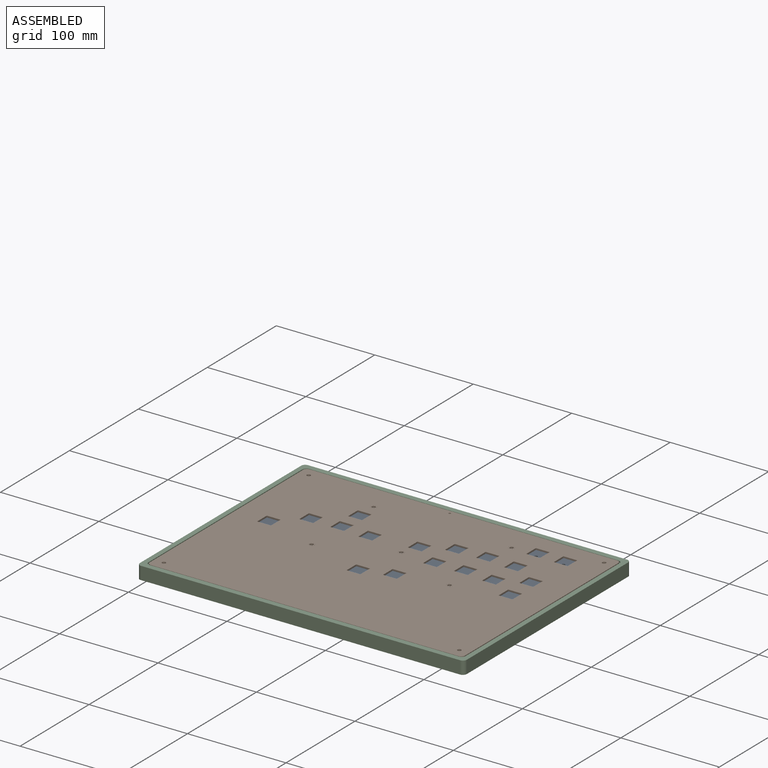
[diagram: assembled view]
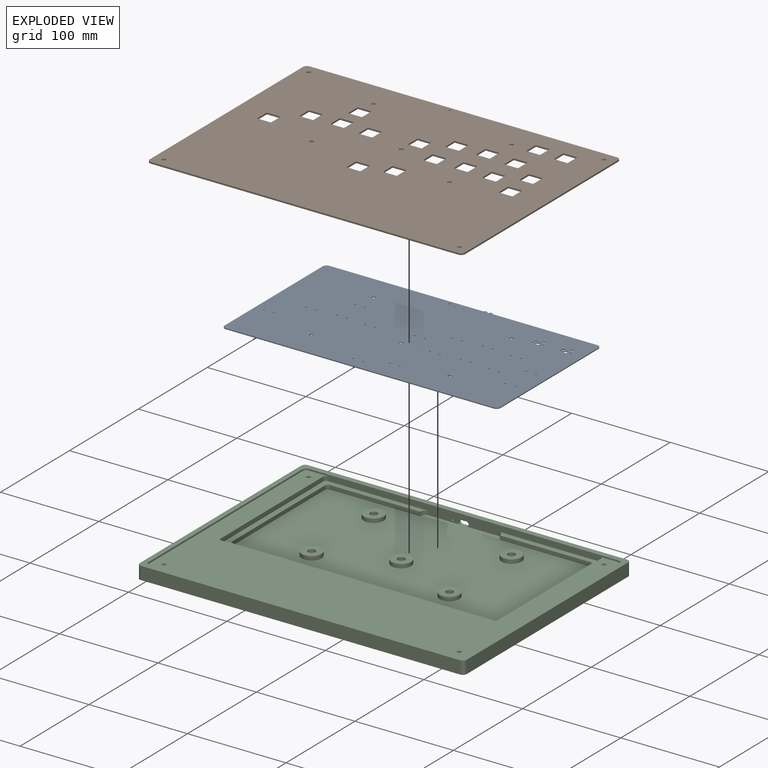
[diagram: exploded view]
GUIDED TOUR — FREECAD ASSEMBLY "UdongCase.rev2.1"

This assembly has 3 components, labeled P0..P2 below (a component is one placed body or linked part; the same part can appear more than once), held together by 0 modeled joints plus 3 derived contact edges. A joint is a constraint between two components; its type names the relative motion it leaves free:
  CONTACT — a derived adjacency edge — the two components touch in the source model (clearance under 2% of the assembly's diagonal); it is measured from the geometry, not a modeled constraint.
Axis/direction vectors are unit vectors and 'through' points are millimeter coordinates, both in the assembly's world frame.

MATES
  1. CONTACT "contact_0_1": P0 <-> P1, contact direction (0.000, 0.000, 1.000) through (-11.31, -5.00, 9.75) mm (derived from contact, not a modeled constraint)
  2. CONTACT "contact_0_2": P0 <-> P2, contact direction (0.000, 0.000, -1.000) through (-4.35, 0.53, 6.59) mm (derived from contact, not a modeled constraint)
  3. CONTACT "contact_1_2": P1 <-> P2, contact direction (0.000, 0.000, -1.000) through (148.07, -220.00, 11.50) mm (derived from contact, not a modeled constraint)

ASSEMBLY ORDER
  1. P2 — the base component [order verified]
  2. P0 [order verified]
  3. P1 [order verified]
Order-tag legend:
  [order verified] — this step's position reverses a verified removal order: the component was checked to insert without passing through the ones already placed.

Of the 3 components, 1 carries a construction recipe — the FreeCAD feature program (sketches with constraints, then the solid features that consume them) that regenerates the part from scratch, quoted from this document or from the linked companion document it references; the rest are supplied as boundary geometry only. The tour below walks the components in assembly order: each is shown spotlighted twice — in the assembled view, then in the exploded view, where a leader line traces a displaced component back to its assembled socket (components that stay in place when exploded have no leader line; saturated green if recipe-attached, orange if geometry-only; every other component desaturated gray) — followed by its recipe or geometry summary and the mates that hold it.
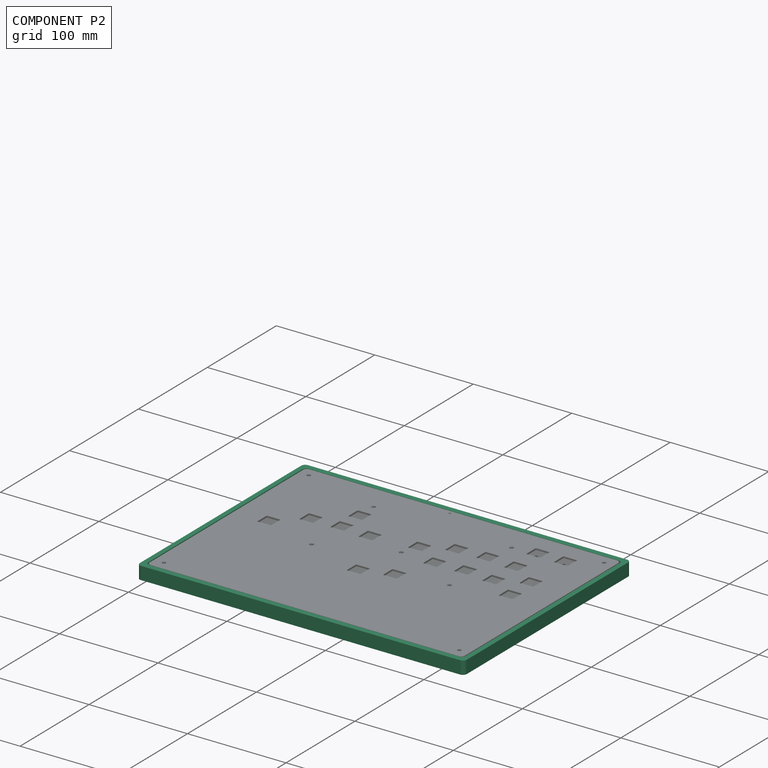
[diagram: component P2 — assembled]
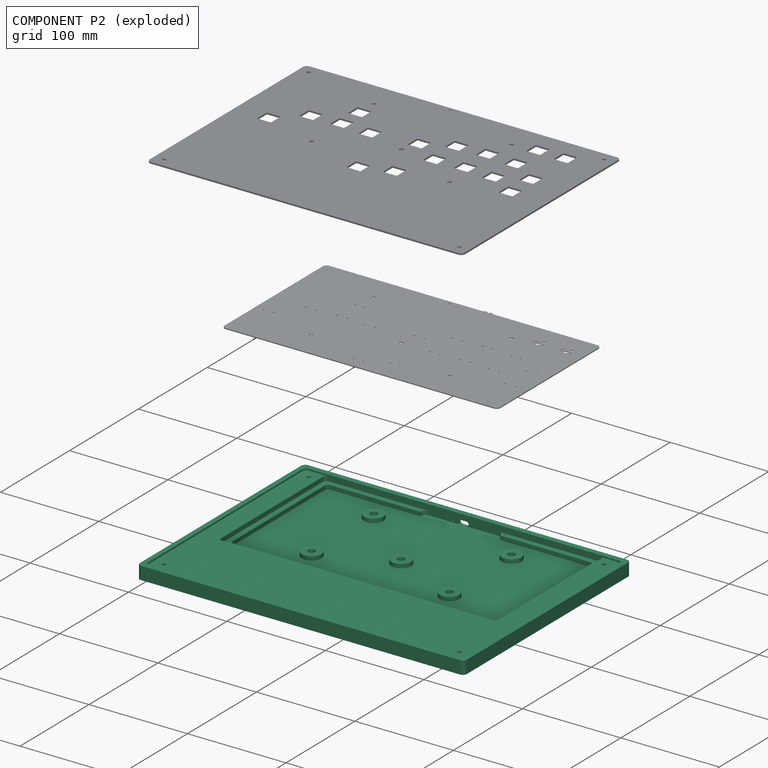
[diagram: component P2 — exploded]
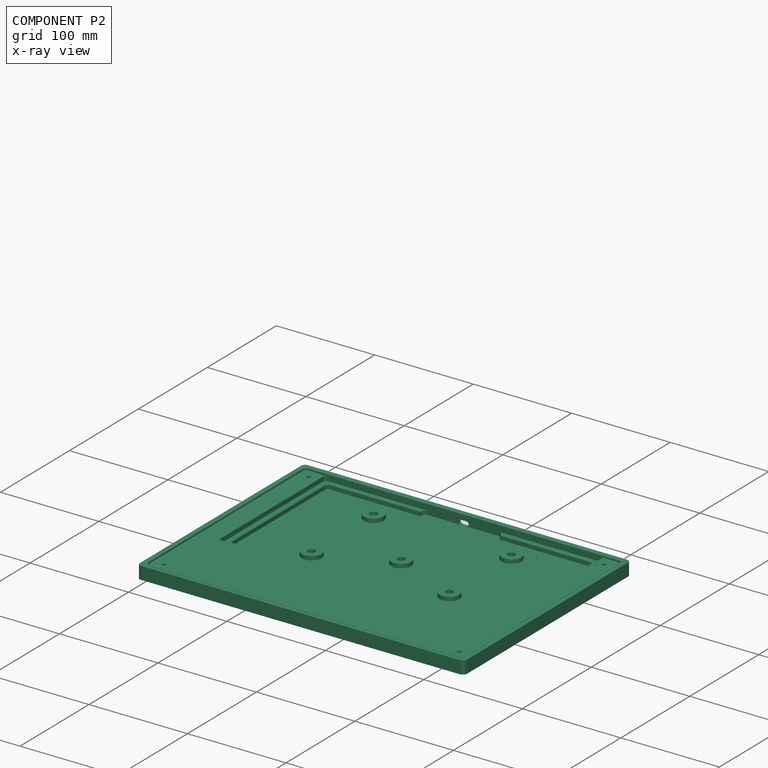
[diagram: component P2 — x-ray view]
COMPONENT P2 — recipe-attached ("Part", modeled in this document).
Held by: resting contact with P0 (derived edge); resting contact with P1 (derived edge).
Construction recipe (the document's own serialized feature program — sketch geometry with constraints, then the solid features built on it; lengths are millimeters unless a unit is written):

FEATURE [Sketcher::SketchObject] Sketch
  FullyConstrained = true
  MapMode = 2
  Support = -> [XY_Plane]
  expr: Constraints[0] = Spreadsheet.box_width
  expr: Constraints[1] = Spreadsheet.box_height
  expr: Constraints[3] = Spreadsheet.wall_thickness
  sketch-geometry (13):
    g0: LineSegment StartX=-162 StartY=6 StartZ=0 EndX=162 EndY=6 EndZ=0
    g1: LineSegment StartX=166 StartY=2 StartZ=0 EndX=166 EndY=-232 EndZ=0
    g2: LineSegment StartX=162 StartY=-236 StartZ=0 EndX=-162 EndY=-236 EndZ=0
    g3: LineSegment StartX=-166 StartY=-232 StartZ=0 EndX=-166 EndY=2 EndZ=0
    g4: GeomPoint X=0 Y=6 Z=0
    g5: ArcOfCircle CenterX=-162 CenterY=2 CenterZ=0 NormalX=0 NormalY=0 NormalZ=1 AngleXU=0 Radius=4 StartAngle=1.5708 EndAngle=3.14159
    g6: GeomPoint X=-166 Y=6 Z=0
    g7: ArcOfCircle CenterX=-162 CenterY=-232 CenterZ=0 NormalX=0 NormalY=0 NormalZ=1 AngleXU=0 Radius=4 StartAngle=3.14159 EndAngle=4.71239
    g8: GeomPoint X=-166 Y=-236 Z=0
    g9: ArcOfCircle CenterX=162 CenterY=-232 CenterZ=0 NormalX=0 NormalY=0 NormalZ=1 AngleXU=0 Radius=4 StartAngle=4.71239 EndAngle=6.28319
    g10: GeomPoint X=166 Y=-236 Z=0
    g11: ArcOfCircle CenterX=162 CenterY=2 CenterZ=0 NormalX=0 NormalY=0 NormalZ=1 AngleXU=0 Radius=4 StartAngle=-6.12e-13 EndAngle=1.5708
    g12: GeomPoint X=166 Y=6 Z=0
  constraints (29):
    c: DistanceX(g6,g12) = 332
    c: DistanceY(g10,g12) = 242
    c: PointOnObject(g4,g-2)
    c: DistanceY(g-1,g4) = 6
    c: Symmetric(g12,g6,g4)
    c: Vertical(g3)
    c: Vertical(g1)
    c: Horizontal(g0)
    c: Horizontal(g2)
    c: PointOnObject(g6,g0)
    c: PointOnObject(g6,g3)
    c: Tangent(g0,g5) = 1.5708
    c: Tangent(g3,g5) = 1.5708
    c: PointOnObject(g8,g3)
    c: PointOnObject(g8,g2)
    c: Tangent(g3,g7) = 1.5708
    c: Tangent(g2,g7) = 1.5708
    c: PointOnObject(g10,g2)
    c: PointOnObject(g10,g1)
    c: Tangent(g2,g9) = 1.5708
    c: Tangent(g1,g9) = 1.5708
    c: PointOnObject(g12,g1)
    c: PointOnObject(g12,g0)
    c: Tangent(g1,g11) = 1.5708
    c: Tangent(g0,g11) = 1.5708
    c: Equal(g11,g5)
    c: Equal(g5,g7)
    c: Equal(g7,g9)
    c: Radius(g5) = 4
FEATURE [PartDesign::Pad] Pad
  Direction = (0,0,1)
  Length = 13.1
  Length2 = 10
  Profile = -> Sketch
  ReferenceAxis = -> Sketch [N_Axis]
  Type = 0
  expr: Length = Spreadsheet.box_thickness
FEATURE [Sketcher::SketchObject] Sketch001
  AttachmentOffset = pos=(0,0,13.1) rot=(0,0,1;0rad)
  FullyConstrained = true
  MapMode = 5
  Placement = pos=(0,0,13.1) rot=(0,0,1;0rad)
  Support = -> [XY_Plane]
  expr: .AttachmentOffset.Base.z = Spreadsheet.box_thickness
  expr: Constraints[12] = -5 mm
  expr: Constraints[13] = Spreadsheet.pcb_width - 10 mm
  expr: Constraints[21] = Spreadsheet.pcb_height - 10 mm
  sketch-geometry (15):
    g0: LineSegment StartX=135 StartY=-8 StartZ=0 EndX=135 EndY=-142 EndZ=0
    g1: LineSegment StartX=132 StartY=-145 StartZ=0 EndX=-132 EndY=-145 EndZ=0
    g2: LineSegment StartX=-135 StartY=-142 StartZ=0 EndX=-135 EndY=-8 EndZ=0
    g3: ArcOfCircle CenterX=-132 CenterY=-8 CenterZ=0 NormalX=0 NormalY=0 NormalZ=1 AngleXU=0 Radius=3 StartAngle=1.57079 EndAngle=3.14159
    g4: ArcOfCircle CenterX=132 CenterY=-8 CenterZ=0 NormalX=0 NormalY=0 NormalZ=1 AngleXU=0 Radius=3 StartAngle=1e-16 EndAngle=1.5708
    g5: ArcOfCircle CenterX=132 CenterY=-142 CenterZ=0 NormalX=0 NormalY=0 NormalZ=1 AngleXU=0 Radius=3 StartAngle=4.71239 EndAngle=6.28319
    g6: GeomPoint X=135 Y=-145 Z=0
    g7: ArcOfCircle CenterX=-132 CenterY=-142 CenterZ=0 NormalX=0 NormalY=0 NormalZ=1 AngleXU=0 Radius=3 StartAngle=3.14159 EndAngle=4.71239
    g8: GeomPoint X=-135 Y=-145 Z=0
    g9: LineSegment StartX=-300 StartY=-5 StartZ=0 EndX=300 EndY=-5 EndZ=0
    g10: LineSegment StartX=35 StartY=0.5 StartZ=0 EndX=-35 EndY=0.5 EndZ=0
    g11: LineSegment StartX=-132 StartY=-5 StartZ=0 EndX=-40.5 EndY=-5 EndZ=0
    g12: ArcOfCircle CenterX=-35 CenterY=-5 CenterZ=0 NormalX=0 NormalY=0 NormalZ=1 AngleXU=0 Radius=5.5 StartAngle=1.5708 EndAngle=3.14159
    g13: LineSegment StartX=40.5 StartY=-5 StartZ=0 EndX=132 EndY=-5 EndZ=0
    g14: ArcOfCircle CenterX=35 CenterY=-5 CenterZ=0 NormalX=0 NormalY=0 NormalZ=1 AngleXU=0 Radius=5.5 StartAngle=1e-16 EndAngle=1.5708
  constraints (39):
    c: Horizontal(g1)
    c: Vertical(g2)
    c: Tangent(g2,g3) = 1.5708
    c: Tangent(g0,g4) = 1.5708
    c: PointOnObject(g6,g0)
    c: PointOnObject(g6,g1)
    c: Tangent(g0,g5) = 1.5708
    c: Tangent(g1,g5) = 1.5708
    c: PointOnObject(g8,g2)
    c: PointOnObject(g8,g1)
    c: Tangent(g2,g7) = 1.5708
    c: Tangent(g1,g7) = 1.5708
    c: DistanceY(g-1,g9) = -5
    c: DistanceX(g2,g0) = 270
    c: Symmetric(g2,g0,g-2)
    c: DistanceX(g9,g9) = 600
    c: Symmetric(g9,g9,g-2)
    c: Coincident(g11,g3)
    c: Horizontal(g11)
    c: Tangent(g10,g12) = -1.5708
    c: Radius(g12) = 5.5
    c: DistanceY(g1,g4) = 140
    c: PointOnObject(g4,g9)
    c: Angle(g12) = 1.5708
    c: Equal(g0,g2)
    c: Angle(g4) = 1.5708
    c: Equal(g3,g4)
    c: Equal(g5,g4)
    c: Equal(g7,g4)
    c: Radius(g4) = 3
    c: Coincident(g11,g12)
    c: PointOnObject(g13,g9)
    c: Tangent(g10,g14) = -1.5708
    c: Horizontal(g10)
    c: Angle(g14) = 1.5708
    c: Coincident(g14,g13)
    c: DistanceX(g10,g10) = 70
    c: Symmetric(g12,g14,g-2)
    c: Coincident(g13,g4)
FEATURE [PartDesign::Pocket] Pocket  label="MainPocket"
  BaseFeature = -> Pad
  Direction = (0,0,-1)
  Length = 10.1
  Length2 = 5
  Profile = -> Sketch001
  ReferenceAxis = -> Sketch001 [N_Axis]
  Type = 0
  expr: Length = Spreadsheet.box_thickness - Spreadsheet.box_bottom_thickness
FEATURE [Sketcher::SketchObject] Sketch012
  FullyConstrained = true
  MapMode = 5
  Support = -> [XY_Plane014]
  sketch-geometry (5):
    g0: Circle CenterX=-70 CenterY=-120 CenterZ=0 NormalX=0 NormalY=0 NormalZ=1 AngleXU=0 Radius=10
    g1: Circle CenterX=70 CenterY=-120 CenterZ=0 NormalX=0 NormalY=0 NormalZ=1 AngleXU=0 Radius=10
    g2: Circle CenterX=70 CenterY=-30 CenterZ=0 NormalX=0 NormalY=0 NormalZ=1 AngleXU=0 Radius=10
    g3: Circle CenterX=0 CenterY=-90 CenterZ=0 NormalX=0 NormalY=0 NormalZ=1 AngleXU=0 Radius=10
    g4: Circle CenterX=-70 CenterY=-30 CenterZ=0 NormalX=0 NormalY=0 NormalZ=1 AngleXU=0 Radius=10
  constraints (15):
    c: DistanceY(g0) = -120
    c: Vertical(g1,g2)
    c: DistanceY(g1) = -120
    c: Equal(g1,g0)
    c: PointOnObject(g3,g-2)
    c: DistanceY(g3) = -90
    c: Equal(g4,g0)
    c: Vertical(g4,g0)
    c: Horizontal(g4,g2)
    c: Equal(g3,g2)
    c: Equal(g2,g1)
    c: Radius(g2) = 10
    c: DistanceX(g0) = -70
    c: DistanceY(g4) = -30
    c: DistanceX(g2) = 70
FEATURE [Sketcher::SketchObject] Sketch013
  AttachmentOffset = pos=(0,0,7) rot=(0,0,1;0rad)
  FullyConstrained = true
  MapMode = 5
  Placement = pos=(0,0,7) rot=(0,0,1;0rad)
  Support = -> [XY_Plane]
  expr: .AttachmentOffset.Base.z = Spreadsheet.pcb_bottom
  sketch-geometry (5):
    g0: Circle CenterX=-70 CenterY=-30 CenterZ=0 NormalX=0 NormalY=0 NormalZ=1 AngleXU=0 Radius=3.75
    g1: Circle CenterX=-70 CenterY=-120 CenterZ=0 NormalX=0 NormalY=0 NormalZ=1 AngleXU=0 Radius=3.75
    g2: Circle CenterX=70 CenterY=-120 CenterZ=0 NormalX=0 NormalY=0 NormalZ=1 AngleXU=0 Radius=3.75
    g3: Circle CenterX=70 CenterY=-30 CenterZ=0 NormalX=0 NormalY=0 NormalZ=1 AngleXU=0 Radius=3.75
    g4: Circle CenterX=0 CenterY=-90 CenterZ=0 NormalX=0 NormalY=0 NormalZ=1 AngleXU=0 Radius=3.75
  constraints (14):
    c: DistanceX(g0) = -70
    c: Vertical(g0,g1)
    c: DistanceY(g0) = -30
    c: DistanceY(g1) = -120
    c: Vertical(g2,g3)
    c: DistanceY(g2) = -120
    c: Equal(g2,g1)
    c: Equal(g1,g0)
    c: Equal(g0,g3)
    c: Diameter(g0) = 7.5
    c: Symmetric(g3,g0,g-2)
    c: PointOnObject(g4,g-2)
    c: DistanceY(g4) = -90
    c: Equal(g4,g1)
FEATURE [Sketcher::SketchObject] Sketch015
  AttachmentOffset = pos=(0,0,-0.5) rot=(0,0,1;0rad)
  FullyConstrained = true
  MapMode = 5
  Placement = pos=(0,0.5,1e-16) rot=(1,0,0;1.5708rad)
  Support = -> [XZ_Plane]
  expr: Constraints[7] = Spreadsheet.box_bottom_thickness
  sketch-geometry (5):
    g0: ArcOfCircle CenterX=2.75 CenterY=5.25 CenterZ=0 NormalX=0 NormalY=0 NormalZ=1 AngleXU=0 Radius=2.25 StartAngle=4.71239 EndAngle=7.85398
    g1: ArcOfCircle CenterX=-2.75 CenterY=5.25 CenterZ=0 NormalX=0 NormalY=0 NormalZ=1 AngleXU=0 Radius=2.25 StartAngle=1.5708 EndAngle=4.71239
    g2: LineSegment StartX=2.75 StartY=7.5 StartZ=0 EndX=-2.75 EndY=7.5 EndZ=0
    g3: LineSegment StartX=-2.75 StartY=3 StartZ=0 EndX=2.75 EndY=3 EndZ=0
    g4: Circle CenterX=-11.3 CenterY=5.25 CenterZ=0 NormalX=0 NormalY=0 NormalZ=1 AngleXU=0 Radius=1
  constraints (12):
    c: Tangent(g0,g2) = -1.5708
    c: Tangent(g2,g1) = -1.5708
    c: Tangent(g1,g3) = -1.5708
    c: Tangent(g3,g0) = -1.5708
    c: Equal(g0,g1)
    c: DistanceX(g1,g0) = 5.5
    c: Symmetric(g0,g1,g-2)
    c: DistanceY(g0) = 3
    c: DistanceY(g1,g1) = 4.5
    c: Horizontal(g4,g1)
    c: Radius(g4) = 1
    c: DistanceX(g4) = -11.3
FEATURE [Sketcher::SketchObject] Sketch016
  AttachmentOffset = pos=(0,0,-1.9) rot=(0,0,1;0rad)
  FullyConstrained = true
  MapMode = 5
  Placement = pos=(0,1.9,4e-16) rot=(1,0,0;1.5708rad)
  Support = -> [XZ_Plane]
  expr: .AttachmentOffset.Base.z = -1.9
  sketch-geometry (9):
    g0: LineSegment StartX=-4 StartY=9.42565 StartZ=0 EndX=4 EndY=9.42565 EndZ=0
    g1: LineSegment StartX=7 StartY=6.42565 StartZ=0 EndX=7 EndY=4.42565 EndZ=0
    g2: LineSegment StartX=4 StartY=1.42565 StartZ=0 EndX=-4 EndY=1.42565 EndZ=0
    g3: LineSegment StartX=-7 StartY=4.42565 StartZ=0 EndX=-7 EndY=6.42565 EndZ=0
    g4: LineSegment StartX=-13.2566 StartY=5.42565 StartZ=0 EndX=29.9775 EndY=5.42565 EndZ=0
    g5: ArcOfCircle CenterX=4 CenterY=4.42565 CenterZ=0 NormalX=0 NormalY=0 NormalZ=1 AngleXU=0 Radius=3 StartAngle=4.71239 EndAngle=6.28319
    g6: ArcOfCircle CenterX=4 CenterY=6.42565 CenterZ=0 NormalX=0 NormalY=0 NormalZ=1 AngleXU=0 Radius=3 StartAngle=-2.327e-13 EndAngle=1.5708
    g7: ArcOfCircle CenterX=-4 CenterY=6.42565 CenterZ=0 NormalX=0 NormalY=0 NormalZ=1 AngleXU=0 Radius=3 StartAngle=1.5708 EndAngle=3.14159
    g8: ArcOfCircle CenterX=-4 CenterY=4.42565 CenterZ=0 NormalX=0 NormalY=0 NormalZ=1 AngleXU=0 Radius=3 StartAngle=3.14159 EndAngle=4.71239
  constraints (21):
    c: Horizontal(g0)
    c: Horizontal(g2)
    c: Vertical(g1)
    c: Vertical(g3)
    c: Block(g4)
    c: Tangent(g1,g5) = 1.5708
    c: Tangent(g2,g5) = 1.5708
    c: Tangent(g1,g6) = 1.5708
    c: Tangent(g0,g6) = 1.5708
    c: Tangent(g0,g7) = 1.5708
    c: Tangent(g3,g7) = 1.5708
    c: Tangent(g3,g8) = 1.5708
    c: Tangent(g2,g8) = 1.5708
    c: DistanceX(g3,g1) = 14
    c: DistanceY(g2,g0) = 8
    c: Equal(g8,g7)
    c: Equal(g7,g6)
    c: Equal(g6,g5)
    c: Radius(g7) = 3
    c: DistanceX(g3,g-1) = 7
    c: Symmetric(g2,g0,g4)
FEATURE [Sketcher::SketchObject] Sketch017
  AttachmentOffset = pos=(0,0,11.5) rot=(0,0,1;0rad)
  FullyConstrained = true
  MapMode = 5
  Placement = pos=(0,0,11.5) rot=(0,0,1;0rad)
  Support = -> [XY_Plane]
  expr: .AttachmentOffset.Base.z = Spreadsheet.topplate_alt
  sketch-geometry (4):
    g0: Circle CenterX=-150 CenterY=-10 CenterZ=0 NormalX=0 NormalY=0 NormalZ=1 AngleXU=0 Radius=2
    g1: Circle CenterX=-150 CenterY=-220 CenterZ=0 NormalX=0 NormalY=0 NormalZ=1 AngleXU=0 Radius=2
    g2: Circle CenterX=150 CenterY=-10 CenterZ=0 NormalX=0 NormalY=0 NormalZ=1 AngleXU=0 Radius=2
    g3: Circle CenterX=150 CenterY=-220 CenterZ=0 NormalX=0 NormalY=0 NormalZ=1 AngleXU=0 Radius=2
  constraints (10):
    c: Radius(g0) = 2
    c: DistanceX(g0) = -150
    c: DistanceY(g0) = -10
    c: Equal(g0,g1) = 1.6
    c: Vertical(g0,g1)
    c: DistanceY(g1) = -220
    c: Equal(g2,g3) = 1.6
    c: Symmetric(g2,g0,g-2)
    c: Symmetric(g3,g1,g-2)
    c: Equal(g2,g0)
FEATURE [Sketcher::SketchObject] Sketch014
  AttachmentOffset = pos=(0,0,13.1) rot=(0,0,1;0rad)
  FullyConstrained = true
  MapMode = 5
  Placement = pos=(0,0,13.1) rot=(0,0,1;0rad)
  Support = -> [XY_Plane]
  expr: .AttachmentOffset.Base.z = Spreadsheet.box_thickness
  expr: Constraints[4] = Spreadsheet.topplate_width + 2 mm
  expr: Constraints[5] = Spreadsheet.topplate_height + 1 mm
  sketch-geometry (12):
    g0: LineSegment StartX=-157 StartY=0.5 StartZ=0 EndX=157 EndY=0.5 EndZ=0
    g1: LineSegment StartX=161 StartY=-3.5 StartZ=0 EndX=161 EndY=-226.5 EndZ=0
    g2: LineSegment StartX=157 StartY=-230.5 StartZ=0 EndX=-157 EndY=-230.5 EndZ=0
    g3: LineSegment StartX=-161 StartY=-226.5 StartZ=0 EndX=-161 EndY=-3.5 EndZ=0
    g4: ArcOfCircle CenterX=-157 CenterY=-3.5 CenterZ=0 NormalX=0 NormalY=0 NormalZ=1 AngleXU=0 Radius=4 StartAngle=1.5708 EndAngle=3.14159
    g5: GeomPoint X=-161 Y=0.5 Z=0
    g6: ArcOfCircle CenterX=157 CenterY=-3.5 CenterZ=0 NormalX=0 NormalY=0 NormalZ=1 AngleXU=0 Radius=4 StartAngle=-1.69e-14 EndAngle=1.5708
    g7: GeomPoint X=161 Y=0.5 Z=0
    g8: ArcOfCircle CenterX=157 CenterY=-226.5 CenterZ=0 NormalX=0 NormalY=0 NormalZ=1 AngleXU=0 Radius=4 StartAngle=4.71239 EndAngle=6.28319
    g9: GeomPoint X=161 Y=-230.5 Z=0
    g10: ArcOfCircle CenterX=-157 CenterY=-226.5 CenterZ=0 NormalX=0 NormalY=0 NormalZ=1 AngleXU=0 Radius=4 StartAngle=3.14159 EndAngle=4.71239
    g11: GeomPoint X=-161 Y=-230.5 Z=0
  constraints (27):
    c: Horizontal(g0)
    c: Horizontal(g2)
    c: Vertical(g1)
    c: Vertical(g3)
    c: DistanceX(g11,g9) = 322
    c: DistanceY(g9,g7) = 231
    c: PointOnObject(g5,g0)
    c: PointOnObject(g5,g3)
    c: Tangent(g0,g4) = 1.5708
    c: Tangent(g3,g4) = 1.5708
    c: PointOnObject(g7,g1)
    c: PointOnObject(g7,g0)
    c: Tangent(g1,g6) = 1.5708
    c: Tangent(g0,g6) = 1.5708
    c: PointOnObject(g9,g1)
    c: PointOnObject(g9,g2)
    c: Tangent(g1,g8) = 1.5708
    c: Tangent(g2,g8) = 1.5708
    c: PointOnObject(g11,g3)
    c: PointOnObject(g11,g2)
    c: Tangent(g3,g10) = 1.5708
    c: Tangent(g2,g10) = 1.5708
    c: Equal(g10,g4)
    c: Equal(g6,g8)
    c: Radius(g4) = 4
    c: DistanceY(g-1,g0) = 0.5
    c: Symmetric(g1,g3,g-2)
FEATURE [Sketcher::SketchObject] Sketch018
  AttachmentOffset = pos=(0,0,13.1) rot=(0,0,1;0rad)
  FullyConstrained = false
  MapMode = 5
  Placement = pos=(0,0,13.1) rot=(0,0,1;0rad)
  Support = -> [XY_Plane]
  expr: .AttachmentOffset.Base.z = Spreadsheet.box_thickness
  expr: Constraints[22] = Spreadsheet.pcb_width + 2 mm
  sketch-geometry (11):
    g0: LineSegment StartX=-137.594 StartY=0.5 StartZ=0 EndX=138.406 EndY=0.5 EndZ=0
    g1: LineSegment StartX=141.406 StartY=-2.5184 StartZ=0 EndX=140.495 EndY=-151.068 EndZ=0
    g2: LineSegment StartX=137.495 StartY=-154.05 StartZ=0 EndX=-137.594 EndY=-154.05 EndZ=0
    g3: LineSegment StartX=-140.594 StartY=-151.05 StartZ=0 EndX=-140.594 EndY=-2.5 EndZ=0
    g4: ArcOfCircle CenterX=-137.594 CenterY=-2.5 CenterZ=0 NormalX=0 NormalY=0 NormalZ=1 AngleXU=0 Radius=3 StartAngle=1.5708 EndAngle=3.14159
    g5: ArcOfCircle CenterX=138.406 CenterY=-2.5 CenterZ=0 NormalX=0 NormalY=0 NormalZ=1 AngleXU=0 Radius=3 StartAngle=6.27705 EndAngle=7.85398
    g6: ArcOfCircle CenterX=137.495 CenterY=-151.05 CenterZ=0 NormalX=0 NormalY=0 NormalZ=1 AngleXU=0 Radius=3 StartAngle=4.71239 EndAngle=6.27705
    g7: GeomPoint X=140.477 Y=-154.05 Z=0
    g8: ArcOfCircle CenterX=-137.594 CenterY=-151.05 CenterZ=0 NormalX=0 NormalY=0 NormalZ=1 AngleXU=0 Radius=3 StartAngle=3.14159 EndAngle=4.71239
    g9: GeomPoint X=-140.594 Y=-154.05 Z=0
    g10: LineSegment StartX=-294.786 StartY=0.5 StartZ=0 EndX=295.214 EndY=0.5 EndZ=0
  constraints (23):
    c: Horizontal(g0)
    c: Horizontal(g2)
    c: Vertical(g3)
    c: Tangent(g0,g4) = 1.5708
    c: Tangent(g3,g4) = 1.5708
    c: Tangent(g1,g5) = 1.5708
    c: Tangent(g0,g5) = 1.5708
    c: PointOnObject(g7,g1)
    c: PointOnObject(g7,g2)
    c: Tangent(g1,g6) = 1.5708
    c: Tangent(g2,g6) = 1.5708
    c: PointOnObject(g9,g3)
    c: PointOnObject(g9,g2)
    c: Tangent(g3,g8) = 1.5708
    c: Tangent(g2,g8) = 1.5708
    c: Radius(g4) = 3
    c: Equal(g8,g6)
    c: Equal(g6,g5)
    c: Equal(g5,g4)
    c: Horizontal(g10)
    c: DistanceY(g-1,g10) = 0.5
    c: PointOnObject(g0,g10)
    c: DistanceX(g3,g1) = 282
FEATURE [PartDesign::Pocket] Pocket006  label="PCBHolder"
  BaseFeature = -> Pocket
  Direction = (0,0,-1)
  Length = 6.1
  Length2 = 5
  Profile = -> Sketch018
  ReferenceAxis = -> Sketch018 [N_Axis]
  Type = 0
  expr: Length = Spreadsheet.box_thickness - Spreadsheet.pcb_bottom
FEATURE [PartDesign::Pad] Pad003  label="PcbBoltSupport"
  BaseFeature = -> Pocket006
  Direction = (0,0,1)
  Length = 7
  Length2 = 10
  Profile = -> Sketch012
  ReferenceAxis = -> Sketch012 [N_Axis]
  Type = 0
  expr: Length = Spreadsheet.pcb_bottom
FEATURE [PartDesign::Pocket] Pocket003  label="ConnectorHoles"
  BaseFeature = -> Pad003
  Direction = (0,1,2e-16)
  Length = 6
  Length2 = 5
  Profile = -> Sketch015
  ReferenceAxis = -> Sketch015 [N_Axis]
  Type = 0
  expr: Length = Spreadsheet.wall_thickness
FEATURE [PartDesign::Pocket] Pocket004  label="ConnectorMargin"
  BaseFeature = -> Pocket003
  Direction = (0,1,2e-16)
  Length = 4.1
  Length2 = 5
  Profile = -> Sketch016
  ReferenceAxis = -> Sketch016 [N_Axis]
  Type = 0
  expr: Length = Spreadsheet.wall_thickness - 1.9 mm
FEATURE [PartDesign::Pocket] Pocket001  label="BoltSpace"
  BaseFeature = -> Pocket004
  Direction = (0,0,-1)
  Length = 4
  Length2 = 5
  Profile = -> Sketch013
  ReferenceAxis = -> Sketch013 [N_Axis]
  Type = 0
  expr: Length = 4 mm
FEATURE [PartDesign::Pocket] Pocket002  label="TopplatePocket"
  BaseFeature = -> Pocket001
  Direction = (0,0,-1)
  Length = 1.6
  Length2 = 5
  Profile = -> Sketch014
  ReferenceAxis = -> Sketch014 [N_Axis]
  Type = 0
  expr: Length = Spreadsheet.topplate_thickness
FEATURE [PartDesign::Pocket] Pocket005  label="InsertNutHoles"
  BaseFeature = -> Pocket002
  Direction = (0,0,-1)
  Length = 5.5
  Length2 = 5
  Profile = -> Sketch017
  ReferenceAxis = -> Sketch017 [N_Axis]
  Type = 0
FEATURE [PartDesign::Body] Body
  Group = -> [Sketch,Pad,Sketch001,Pocket,Sketch012,Sketch018,Pocket006,Pad003,Sketch013,Sketch015,Pocket003,Sketch016,Pocket004,Sketch017,Pocket001,Sketch014,Pocket002,Pocket005]
  Origin = -> Origin
  Tip = -> Pocket005
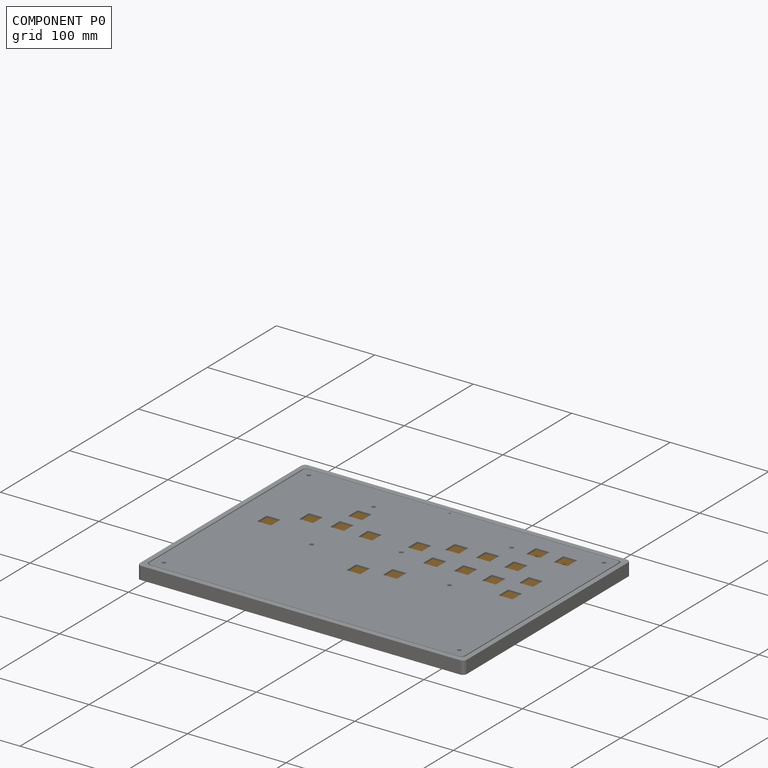
[diagram: component P0 — assembled]
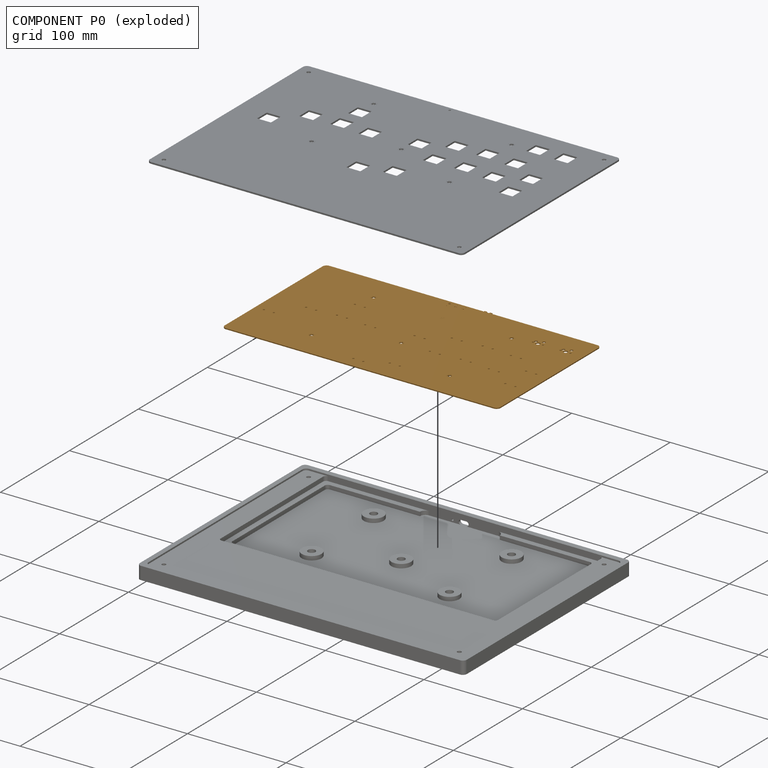
[diagram: component P0 — exploded]
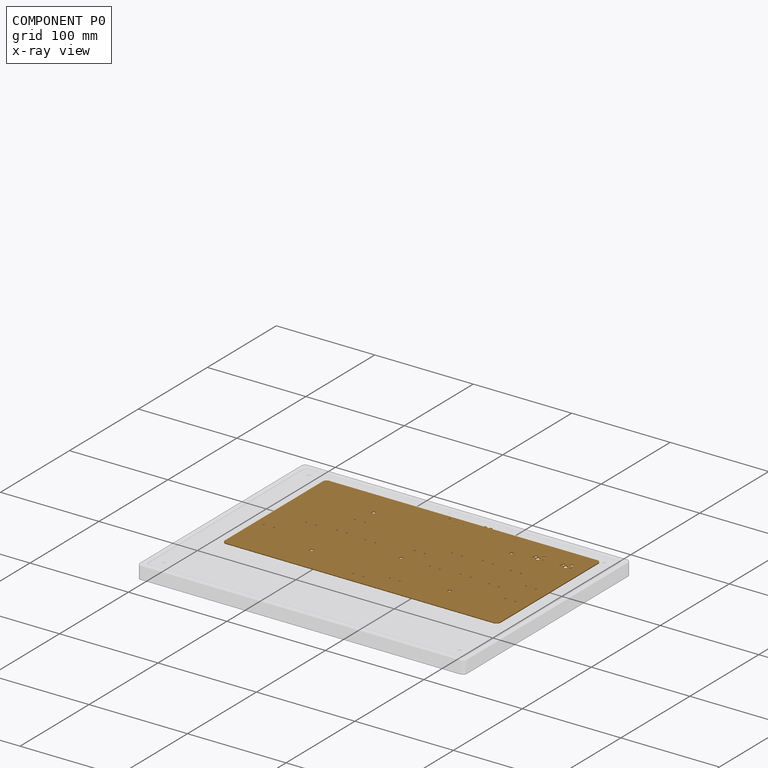
[diagram: component P0 — x-ray view]
COMPONENT P0 — geometry summary ("mainboard"; no construction recipe available for this part):
  bounding box: 280.0 x 151.8 x 4.8 mm
  tessellated surface: 43,292 triangles
  volume: 42340 mm^3 (21% of its bounding box)
Held by: resting contact with P1 (derived edge); resting contact with P2 (derived edge).
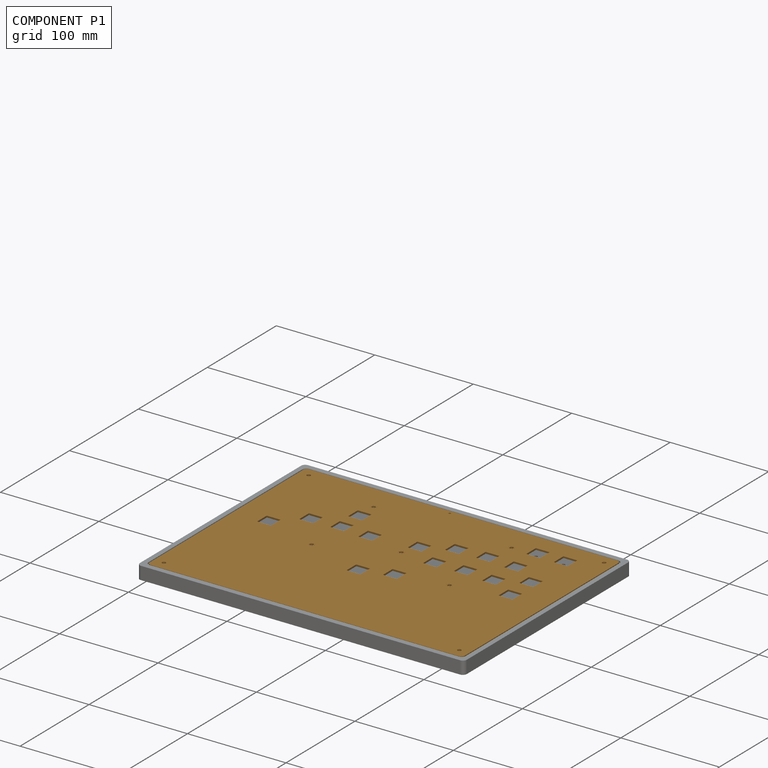
[diagram: component P1 — assembled]
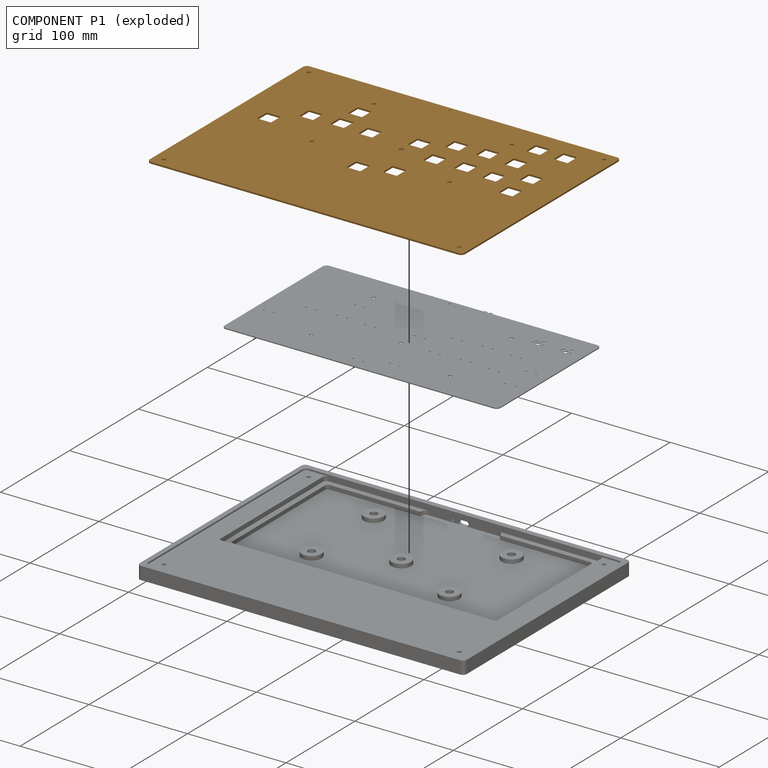
[diagram: component P1 — exploded]
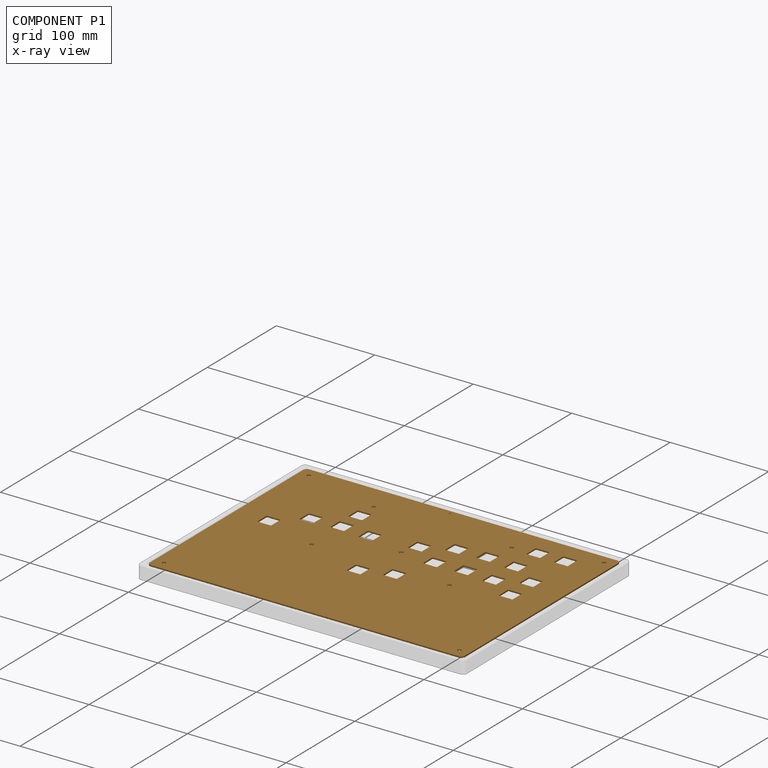
[diagram: component P1 — x-ray view]
COMPONENT P1 — geometry summary ("mainboard_top_plate001"; no construction recipe available for this part):
  bounding box: 320.0 x 230.0 x 1.6 mm
  tessellated surface: 7,124 triangles
  volume: 111921 mm^3 (95% of its bounding box)
  symmetry: mirror-symmetric across its z mid-plane
Held by: resting contact with P0 (derived edge); resting contact with P2 (derived edge).
PROVENANCE & LICENSES
Assembly and component geometry: a FreeCAD (.FCStd) document from a public repository crawl; components, placements and joints were extracted with FreeCAD and each solid tessellated.
Construction recipes: the document's own serialized feature recipes (and, for linked parts, the recipes of companion documents from the same project).
License: as declared in the source repository (recorded in the dataset sidecar).
Joints: native FreeCAD joints and A2plus constraints are mapped to standard mate types; edges marked 'derived from contact' connect touching components and are measured from the geometry, not modeled.
Verification: 1 of this assembly's 3 components carries a construction recipe (1 from this document itself); the rest are geometry-only. Every component's tessellation passed the extraction mesh gates (mesh-volume checksum against the B-rep where available, bounding-box inflation <= 2%).
Renders: orthographic iso camera (az 35 / el 25); the floor grid conveys scale (grid pitch printed in each image; no ruler). In the exploded view each component is displaced by its stored offset vector: the offsets alone carry the explosion direction (mate normal/axis signs are not orientation cues and do not encode it), and separation distances are assigned per mate-chain, not proportionally to assembly-order depth.
